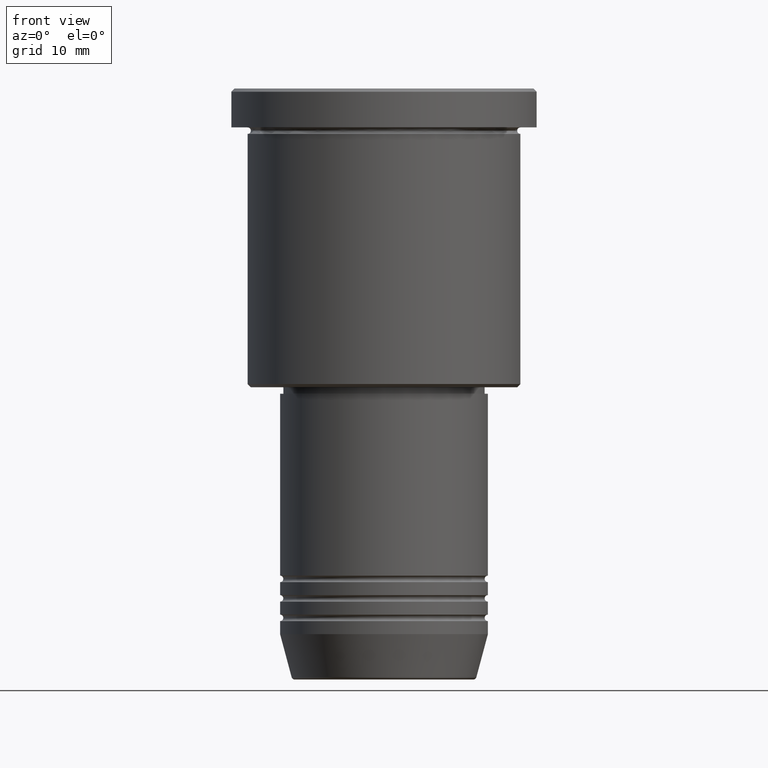
[diagram: clean part render]
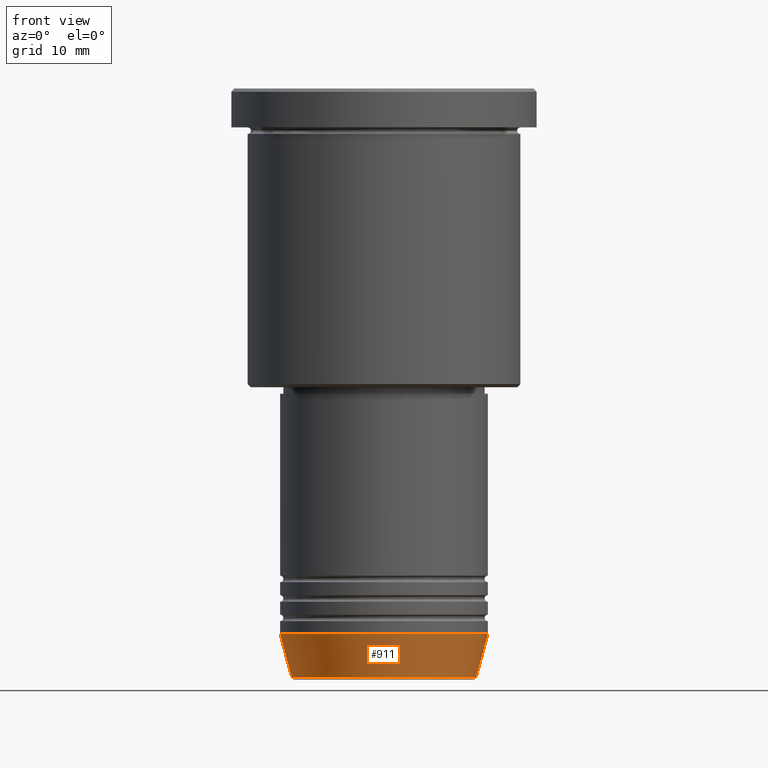
[diagram: same view with one face highlighted and labeled with its STEP entity id]
A machine part, front view. The second image highlights one B-rep face of the part: STEP entity #911.
In plain terms, the highlighted conical surface has half-angle 15 deg.
Its self-contained STEP definition (entity closure, byte-faithful):
#13 = CIRCLE ( 'NONE', #309, 14.22365507213718949 ) ;
#18 = VECTOR ( 'NONE', #1032, 1000.000000000000000 ) ;
#33 = EDGE_CURVE ( 'NONE', #224, #97, #1095, .T. ) ;
#36 = CARTESIAN_POINT ( 'NONE',  ( -16.00000000000000000, 1.959434878635765131E-15, -83.99999999999998579 ) ) ;
#81 = EDGE_CURVE ( 'NONE', #915, #224, #13, .T. ) ;
#97 = VERTEX_POINT ( 'NONE', #255 ) ;
#105 = CARTESIAN_POINT ( 'NONE',  ( -16.00000000000000000, 1.959434878635765131E-15, -83.99999999999998579 ) ) ;
#139 = CARTESIAN_POINT ( 'NONE',  ( 0.000000000000000000, 0.000000000000000000, -90.62940952255125637 ) ) ;
#152 = DIRECTION ( 'NONE',  ( 0.2588190451025213501, 0.000000000000000000, 0.9659258262890680902 ) ) ;
#224 = VERTEX_POINT ( 'NONE', #1004 ) ;
#254 = CIRCLE ( 'NONE', #395, 16.00000000000000000 ) ;
#255 = CARTESIAN_POINT ( 'NONE',  ( 16.00000000000000000, 0.000000000000000000, -83.99999999999998579 ) ) ;
#278 = CONICAL_SURFACE ( 'NONE', #933, 16.00000000000000000, 0.2617993877991500740 ) ;
#288 = ORIENTED_EDGE ( 'NONE', *, *, #676, .F. ) ;
#309 = AXIS2_PLACEMENT_3D ( 'NONE', #139, #769, #1131 ) ;
#318 = CARTESIAN_POINT ( 'NONE',  ( -14.22365507213718949, 1.850665122131323337E-15, -90.62940952255125637 ) ) ;
#360 = CARTESIAN_POINT ( 'NONE',  ( 0.000000000000000000, 0.000000000000000000, -83.99999999999998579 ) ) ;
#395 = AXIS2_PLACEMENT_3D ( 'NONE', #360, #1091, #808 ) ;
#456 = ORIENTED_EDGE ( 'NONE', *, *, #892, .F. ) ;
#609 = EDGE_LOOP ( 'NONE', ( #456, #1086, #652, #288 ) ) ;
#617 = CARTESIAN_POINT ( 'NONE',  ( 16.00000000000000000, 0.000000000000000000, -83.99999999999998579 ) ) ;
#652 = ORIENTED_EDGE ( 'NONE', *, *, #33, .T. ) ;
#674 = LINE ( 'NONE', #36, #18 ) ;
#676 = EDGE_CURVE ( 'NONE', #806, #97, #254, .T. ) ;
#758 = FACE_OUTER_BOUND ( 'NONE', #609, .T. ) ;
#769 = DIRECTION ( 'NONE',  ( -0.000000000000000000, -0.000000000000000000, 1.000000000000000000 ) ) ;
#806 = VERTEX_POINT ( 'NONE', #105 ) ;
#808 = DIRECTION ( 'NONE',  ( 1.000000000000000000, 0.000000000000000000, 0.000000000000000000 ) ) ;
#810 = VECTOR ( 'NONE', #152, 1000.000000000000000 ) ;
#857 = DIRECTION ( 'NONE',  ( 1.000000000000000000, 0.000000000000000000, 0.000000000000000000 ) ) ;
#892 = EDGE_CURVE ( 'NONE', #915, #806, #674, .T. ) ;
#911 = ADVANCED_FACE ( 'NONE', ( #758 ), #278, .T. ) ;
#915 = VERTEX_POINT ( 'NONE', #318 ) ;
#933 = AXIS2_PLACEMENT_3D ( 'NONE', #1125, #1039, #857 ) ;
#1004 = CARTESIAN_POINT ( 'NONE',  ( 14.22365507213718949, 0.000000000000000000, -90.62940952255125637 ) ) ;
#1032 = DIRECTION ( 'NONE',  ( -0.2588190451025213501, 3.169619151431772337E-17, 0.9659258262890680902 ) ) ;
#1039 = DIRECTION ( 'NONE',  ( -0.000000000000000000, -0.000000000000000000, 1.000000000000000000 ) ) ;
#1086 = ORIENTED_EDGE ( 'NONE', *, *, #81, .T. ) ;
#1091 = DIRECTION ( 'NONE',  ( -0.000000000000000000, -0.000000000000000000, 1.000000000000000000 ) ) ;
#1095 = LINE ( 'NONE', #617, #810 ) ;
#1125 = CARTESIAN_POINT ( 'NONE',  ( 0.000000000000000000, 0.000000000000000000, -83.99999999999998579 ) ) ;
#1131 = DIRECTION ( 'NONE',  ( 1.000000000000000000, 0.000000000000000000, 0.000000000000000000 ) ) ;